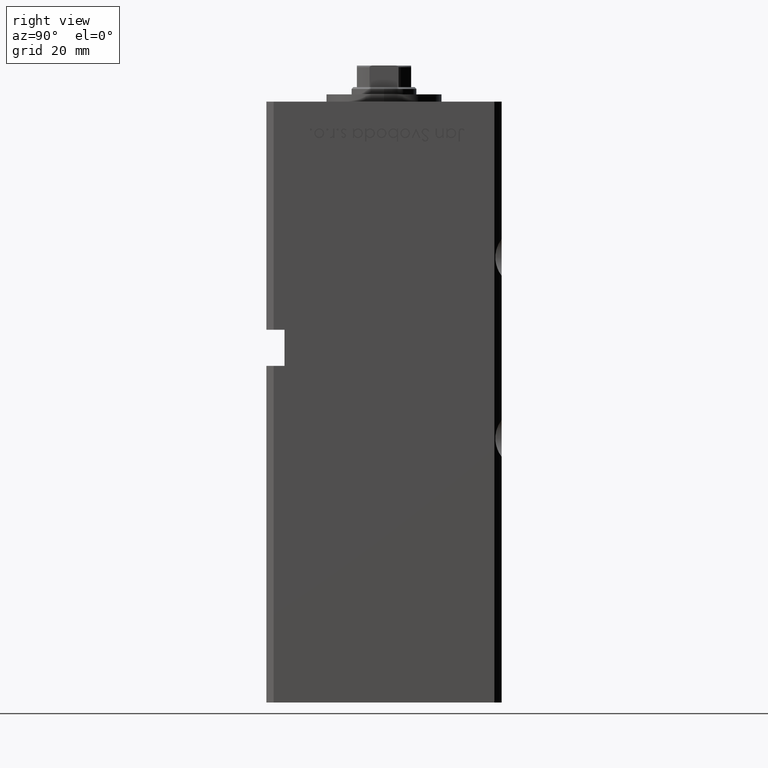
[diagram: clean part render]
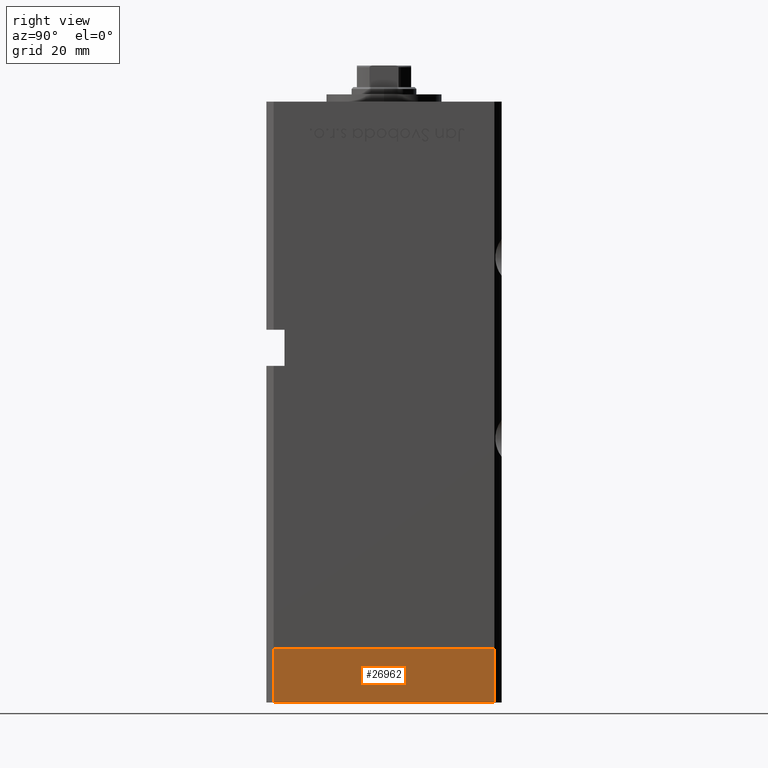
[diagram: same view with one face highlighted and labeled with its STEP entity id]
A machine part, right view. The second image highlights one B-rep face of the part: STEP entity #26962.
In plain terms, the highlighted planar face has unit normal (1, 0, 0).
Its self-contained STEP definition (entity closure, byte-faithful):
#1602 = CARTESIAN_POINT ( 'NONE',  ( -37.50000000000001421, 30.49999999999998579, 0.000000000000000000 ) ) ;
#1750 = VECTOR ( 'NONE', #38904, 1000.000000000000000 ) ;
#2652 = ORIENTED_EDGE ( 'NONE', *, *, #21415, .T. ) ;
#2826 = AXIS2_PLACEMENT_3D ( 'NONE', #11475, #26790, #35658 ) ;
#6582 = CARTESIAN_POINT ( 'NONE',  ( -37.49999999999998579, -30.50000000000001421, -15.00000000000000000 ) ) ;
#8731 = CARTESIAN_POINT ( 'NONE',  ( -37.49999999999998579, -30.50000000000001421, -15.00000000000000000 ) ) ;
#10617 = CARTESIAN_POINT ( 'NONE',  ( -37.49999999999998579, -30.50000000000001421, 0.000000000000000000 ) ) ;
#11475 = CARTESIAN_POINT ( 'NONE',  ( -37.50000000000001421, 30.49999999999998579, -15.00000000000000000 ) ) ;
#13907 = VERTEX_POINT ( 'NONE', #10617 ) ;
#18422 = DIRECTION ( 'NONE',  ( 0.000000000000000000, 0.000000000000000000, 1.000000000000000000 ) ) ;
#18741 = FACE_OUTER_BOUND ( 'NONE', #52382, .T. ) ;
#18833 = VERTEX_POINT ( 'NONE', #38910 ) ;
#20662 = VECTOR ( 'NONE', #21530, 1000.000000000000000 ) ;
#21106 = EDGE_CURVE ( 'NONE', #34060, #13907, #22047, .T. ) ;
#21415 = EDGE_CURVE ( 'NONE', #18833, #30756, #39705, .T. ) ;
#21530 = DIRECTION ( 'NONE',  ( 4.550094363217855288E-16, -1.000000000000000000, 0.000000000000000000 ) ) ;
#21661 = VECTOR ( 'NONE', #39674, 1000.000000000000000 ) ;
#21902 = ORIENTED_EDGE ( 'NONE', *, *, #21106, .F. ) ;
#22047 = LINE ( 'NONE', #1602, #20662 ) ;
#22712 = LINE ( 'NONE', #6582, #32078 ) ;
#24746 = EDGE_CURVE ( 'NONE', #18833, #34060, #35635, .T. ) ;
#26790 = DIRECTION ( 'NONE',  ( -1.000000000000000000, -4.550094363217855288E-16, 0.000000000000000000 ) ) ;
#26962 = ADVANCED_FACE ( 'NONE', ( #18741 ), #48565, .T. ) ;
#28200 = CARTESIAN_POINT ( 'NONE',  ( -37.50000000000001421, 30.49999999999998579, 0.000000000000000000 ) ) ;
#30756 = VERTEX_POINT ( 'NONE', #8731 ) ;
#32078 = VECTOR ( 'NONE', #18422, 1000.000000000000000 ) ;
#34060 = VERTEX_POINT ( 'NONE', #28200 ) ;
#34117 = EDGE_CURVE ( 'NONE', #30756, #13907, #22712, .T. ) ;
#35635 = LINE ( 'NONE', #36169, #21661 ) ;
#35658 = DIRECTION ( 'NONE',  ( 4.550094363217855288E-16, -1.000000000000000000, 0.000000000000000000 ) ) ;
#36169 = CARTESIAN_POINT ( 'NONE',  ( -37.50000000000001421, 30.49999999999998579, -15.00000000000000000 ) ) ;
#38056 = ORIENTED_EDGE ( 'NONE', *, *, #34117, .T. ) ;
#38904 = DIRECTION ( 'NONE',  ( 4.550094363217855288E-16, -1.000000000000000000, 0.000000000000000000 ) ) ;
#38910 = CARTESIAN_POINT ( 'NONE',  ( -37.50000000000001421, 30.49999999999998579, -15.00000000000000000 ) ) ;
#39674 = DIRECTION ( 'NONE',  ( 0.000000000000000000, 0.000000000000000000, 1.000000000000000000 ) ) ;
#39705 = LINE ( 'NONE', #47772, #1750 ) ;
#47772 = CARTESIAN_POINT ( 'NONE',  ( -37.50000000000001421, 30.49999999999998579, -15.00000000000000000 ) ) ;
#48565 = PLANE ( 'NONE',  #2826 ) ;
#52382 = EDGE_LOOP ( 'NONE', ( #21902, #53010, #2652, #38056 ) ) ;
#53010 = ORIENTED_EDGE ( 'NONE', *, *, #24746, .F. ) ;